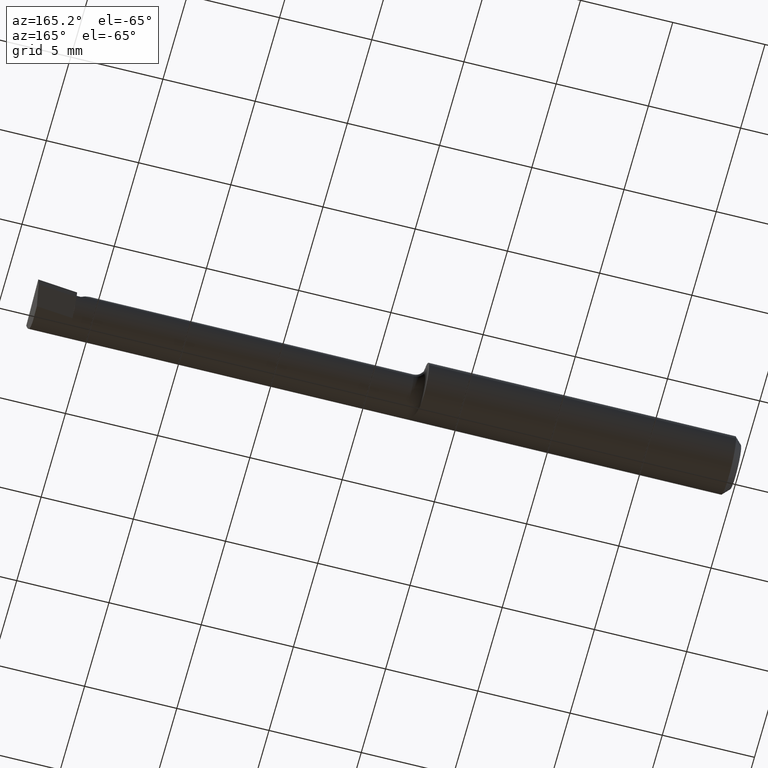
[diagram: clean part render]
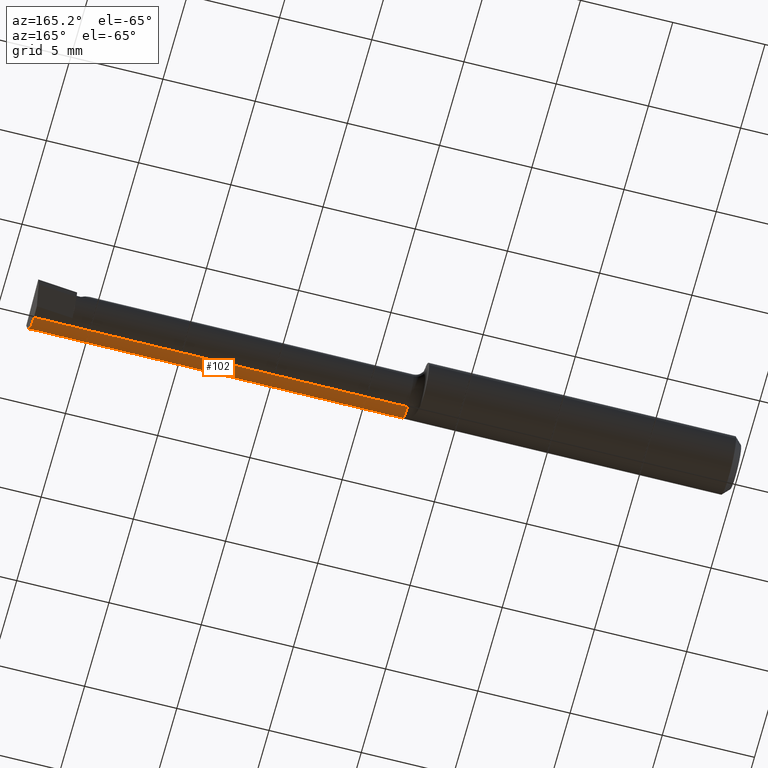
[diagram: same view with one face highlighted and labeled with its STEP entity id]
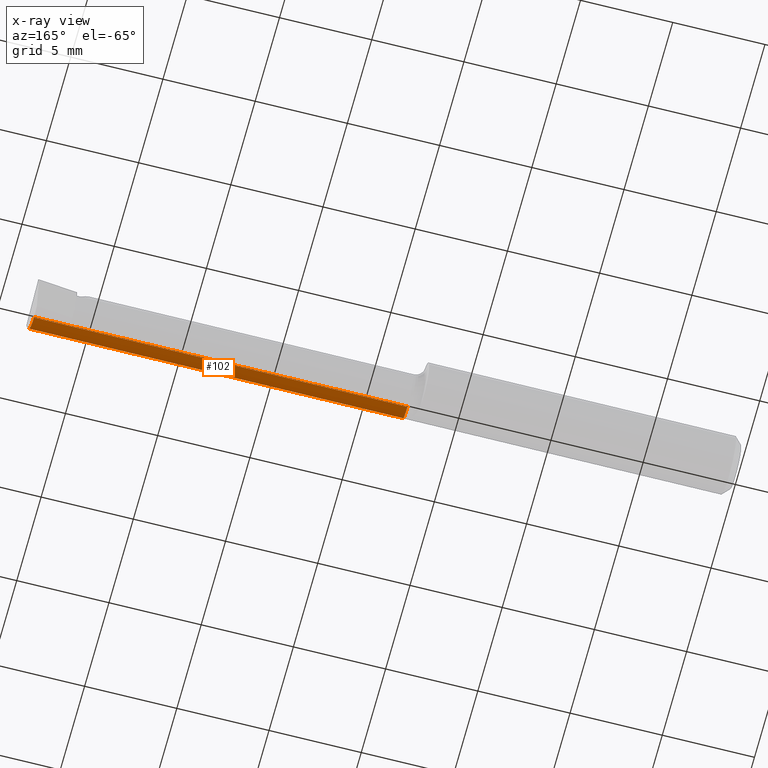
[diagram: x-ray of the same camera — body ghosted, the highlighted face saturated]
A machine part, auxiliary view. The second image highlights one B-rep face of the part: STEP entity #102.
The next image is the same camera in x-ray: the body ghosted, the highlighted face saturated — about 0% of this face is hidden behind the body in this view.
In plain terms, the highlighted cylindrical surface (edge-blend (fillet) strip) has radius 1.2205 mm, axis along (-1, -0, -0).
Its self-contained STEP definition (entity closure, byte-faithful):
#28 = CARTESIAN_POINT ( 'NONE',  ( 1.492420971165606458, -0.01839999999999999969, -0.04804999999999998855 ) ) ;
#39 =( BOUNDED_CURVE ( )  B_SPLINE_CURVE ( 3, ( #342, #65, #702, #467 ),
 .UNSPECIFIED., .F., .F. ) 
 B_SPLINE_CURVE_WITH_KNOTS ( ( 4, 4 ),
 ( 5.715941252449186827, 6.493234751459776355 ),
 .UNSPECIFIED. ) 
 CURVE ( )  GEOMETRIC_REPRESENTATION_ITEM ( )  RATIONAL_B_SPLINE_CURVE ( ( 1.000000000000000000, 0.9502818019828904728, 0.9502818019828904728, 1.000000000000000000 ) ) 
 REPRESENTATION_ITEM ( '' )  );
#65 = CARTESIAN_POINT ( 'NONE',  ( 1.492371467082626468, -0.04299473640227074317, -0.04320958667840185674 ) ) ;
#66 = VERTEX_POINT ( 'NONE', #668 ) ;
#68 = CARTESIAN_POINT ( 'NONE',  ( 0.000000000000000000, -0.01839999999999999275, -0.04804999999999994692 ) ) ;
#102 = ADVANCED_FACE ( 'NONE', ( #338 ), #626, .T. ) ;
#132 = LINE ( 'NONE', #68, #506 ) ;
#167 = CARTESIAN_POINT ( 'NONE',  ( 1.493233423732482024, -0.05210000000000012538, -0.03425072991922926274 ) ) ;
#168 = ORIENTED_EDGE ( 'NONE', *, *, #200, .F. ) ;
#173 = DIRECTION ( 'NONE',  ( -1.000000000000000000, 5.691349986800549142E-18, -0.000000000000000000 ) ) ;
#177 = CARTESIAN_POINT ( 'NONE',  ( 1.055000000000000160, -0.05210000000000012538, -0.03425072991922926274 ) ) ;
#178 = ORIENTED_EDGE ( 'NONE', *, *, #594, .T. ) ;
#187 = ORIENTED_EDGE ( 'NONE', *, *, #421, .F. ) ;
#200 = EDGE_CURVE ( 'NONE', #625, #675, #676, .T. ) ;
#214 = AXIS2_PLACEMENT_3D ( 'NONE', #393, #620, #430 ) ;
#216 = VECTOR ( 'NONE', #399, 39.37007874015748143 ) ;
#233 = CARTESIAN_POINT ( 'NONE',  ( 0.000000000000000000, -0.01839999999999999969, 0.000000000000000000 ) ) ;
#234 = DIRECTION ( 'NONE',  ( -1.000000000000000000, -0.000000000000000000, -0.000000000000000000 ) ) ;
#289 = VERTEX_POINT ( 'NONE', #422 ) ;
#321 = ORIENTED_EDGE ( 'NONE', *, *, #556, .F. ) ;
#338 = FACE_OUTER_BOUND ( 'NONE', #515, .T. ) ;
#342 = CARTESIAN_POINT ( 'NONE',  ( 1.493233423732482024, -0.05210000000000012538, -0.03425072991922926274 ) ) ;
#347 = DIRECTION ( 'NONE',  ( -1.000000000000000000, -0.000000000000000000, -0.000000000000000000 ) ) ;
#360 = VECTOR ( 'NONE', #173, 39.37007874015748143 ) ;
#393 = CARTESIAN_POINT ( 'NONE',  ( 0.6950000000000000622, -0.01839999999999999969, 0.000000000000000000 ) ) ;
#399 = DIRECTION ( 'NONE',  ( -1.000000000000000000, -0.000000000000000000, -0.000000000000000000 ) ) ;
#412 = CIRCLE ( 'NONE', #214, 0.04804999999999990529 ) ;
#421 = EDGE_CURVE ( 'NONE', #289, #66, #412, .T. ) ;
#422 = CARTESIAN_POINT ( 'NONE',  ( 0.6950000000000000622, -0.01839999999999999275, -0.04804999999999990529 ) ) ;
#430 = DIRECTION ( 'NONE',  ( 0.000000000000000000, 0.000000000000000000, 1.000000000000000000 ) ) ;
#446 = VERTEX_POINT ( 'NONE', #167 ) ;
#467 = CARTESIAN_POINT ( 'NONE',  ( 1.492420971165606458, -0.01839999999999999969, -0.04804999999999998855 ) ) ;
#506 = VECTOR ( 'NONE', #234, 39.37007874015748143 ) ;
#515 = EDGE_LOOP ( 'NONE', ( #622, #168, #321, #178, #187 ) ) ;
#521 = EDGE_CURVE ( 'NONE', #675, #289, #132, .T. ) ;
#556 = EDGE_CURVE ( 'NONE', #446, #625, #39, .T. ) ;
#594 = EDGE_CURVE ( 'NONE', #446, #66, #687, .T. ) ;
#620 = DIRECTION ( 'NONE',  ( -1.000000000000000000, -0.000000000000000000, -0.000000000000000000 ) ) ;
#622 = ORIENTED_EDGE ( 'NONE', *, *, #521, .F. ) ;
#625 = VERTEX_POINT ( 'NONE', #28 ) ;
#626 = CYLINDRICAL_SURFACE ( 'NONE', #743, 0.04804999999999994692 ) ;
#646 = CARTESIAN_POINT ( 'NONE',  ( 1.415000000000000036, -0.01839999999999999969, -0.04804999999999998855 ) ) ;
#668 = CARTESIAN_POINT ( 'NONE',  ( 0.6950000000000000622, -0.05210000000000025028, -0.03425072991922908233 ) ) ;
#675 = VERTEX_POINT ( 'NONE', #646 ) ;
#676 = LINE ( 'NONE', #682, #360 ) ;
#682 = CARTESIAN_POINT ( 'NONE',  ( 1.500000000000000222, -0.01839999999999999969, -0.04804999999999998855 ) ) ;
#686 = DIRECTION ( 'NONE',  ( 0.000000000000000000, 0.000000000000000000, 1.000000000000000000 ) ) ;
#687 = LINE ( 'NONE', #177, #216 ) ;
#702 = CARTESIAN_POINT ( 'NONE',  ( 1.492086480543131755, -0.03117368152160952116, -0.04804999999999996774 ) ) ;
#743 = AXIS2_PLACEMENT_3D ( 'NONE', #233, #347, #686 ) ;